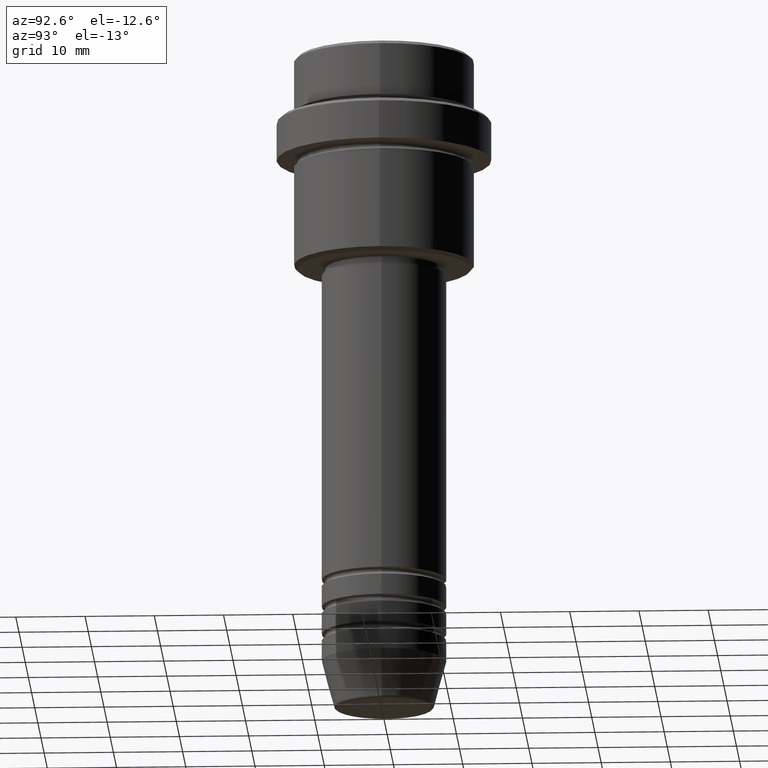
[diagram: clean part render]
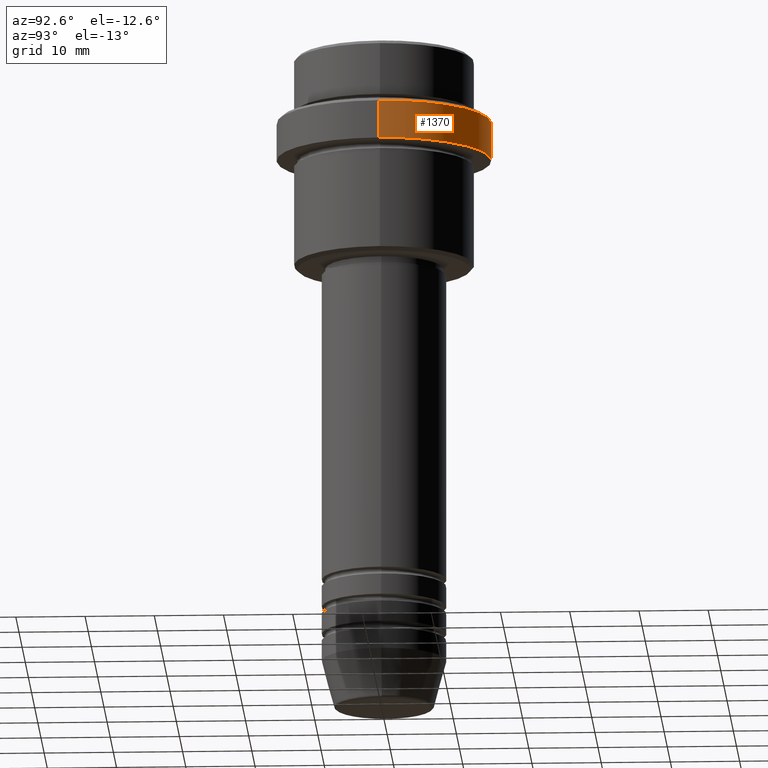
[diagram: same view with one face highlighted and labeled with its STEP entity id]
A machine part, auxiliary view. The second image highlights one B-rep face of the part: STEP entity #1370.
In plain terms, the highlighted cylindrical surface (partial cylindrical patch) has radius 15.5 mm, axis along (-0, -0, 1).
Its self-contained STEP definition (entity closure, byte-faithful):
#36 = EDGE_CURVE ( 'NONE', #623, #1030, #380, .T. ) ;
#46 = VERTEX_POINT ( 'NONE', #67 ) ;
#57 = EDGE_CURVE ( 'NONE', #1030, #46, #1059, .T. ) ;
#58 = CIRCLE ( 'NONE', #299, 15.50000000000000000 ) ;
#67 = CARTESIAN_POINT ( 'NONE',  ( 15.50000000000000000, 0.000000000000000000, -9.499999999999998224 ) ) ;
#92 = DIRECTION ( 'NONE',  ( -0.000000000000000000, -0.000000000000000000, 1.000000000000000000 ) ) ;
#217 = CARTESIAN_POINT ( 'NONE',  ( 0.000000000000000000, 0.000000000000000000, -15.00000000000000000 ) ) ;
#224 = DIRECTION ( 'NONE',  ( -0.000000000000000000, -0.000000000000000000, 1.000000000000000000 ) ) ;
#232 = CARTESIAN_POINT ( 'NONE',  ( -15.50000000000000000, 1.898202538678397557E-15, -15.00000000000000000 ) ) ;
#266 = CARTESIAN_POINT ( 'NONE',  ( 0.000000000000000000, 0.000000000000000000, -9.499999999999998224 ) ) ;
#271 = EDGE_LOOP ( 'NONE', ( #418, #845, #1252, #341 ) ) ;
#299 = AXIS2_PLACEMENT_3D ( 'NONE', #217, #968, #871 ) ;
#341 = ORIENTED_EDGE ( 'NONE', *, *, #870, .F. ) ;
#377 = VECTOR ( 'NONE', #92, 1000.000000000000000 ) ;
#380 = LINE ( 'NONE', #1170, #377 ) ;
#414 = DIRECTION ( 'NONE',  ( 1.000000000000000000, 0.000000000000000000, 0.000000000000000000 ) ) ;
#418 = ORIENTED_EDGE ( 'NONE', *, *, #1327, .T. ) ;
#488 = CARTESIAN_POINT ( 'NONE',  ( 15.50000000000000000, 0.000000000000000000, -15.00000000000000000 ) ) ;
#504 = VECTOR ( 'NONE', #1197, 1000.000000000000000 ) ;
#623 = VERTEX_POINT ( 'NONE', #232 ) ;
#631 = FACE_OUTER_BOUND ( 'NONE', #271, .T. ) ;
#633 = AXIS2_PLACEMENT_3D ( 'NONE', #266, #812, #952 ) ;
#650 = CARTESIAN_POINT ( 'NONE',  ( 0.000000000000000000, 0.000000000000000000, 0.000000000000000000 ) ) ;
#658 = LINE ( 'NONE', #1002, #504 ) ;
#812 = DIRECTION ( 'NONE',  ( 0.000000000000000000, 0.000000000000000000, -1.000000000000000000 ) ) ;
#845 = ORIENTED_EDGE ( 'NONE', *, *, #36, .T. ) ;
#870 = EDGE_CURVE ( 'NONE', #1193, #46, #658, .T. ) ;
#871 = DIRECTION ( 'NONE',  ( 1.000000000000000000, 0.000000000000000000, 0.000000000000000000 ) ) ;
#952 = DIRECTION ( 'NONE',  ( 1.000000000000000000, 0.000000000000000000, 0.000000000000000000 ) ) ;
#968 = DIRECTION ( 'NONE',  ( -0.000000000000000000, -0.000000000000000000, 1.000000000000000000 ) ) ;
#1002 = CARTESIAN_POINT ( 'NONE',  ( 15.50000000000000000, 0.000000000000000000, 0.000000000000000000 ) ) ;
#1030 = VERTEX_POINT ( 'NONE', #1335 ) ;
#1059 = CIRCLE ( 'NONE', #633, 15.50000000000000000 ) ;
#1085 = CYLINDRICAL_SURFACE ( 'NONE', #1341, 15.50000000000000000 ) ;
#1170 = CARTESIAN_POINT ( 'NONE',  ( -15.50000000000000000, 1.898202538678397557E-15, 0.000000000000000000 ) ) ;
#1193 = VERTEX_POINT ( 'NONE', #488 ) ;
#1197 = DIRECTION ( 'NONE',  ( -0.000000000000000000, -0.000000000000000000, 1.000000000000000000 ) ) ;
#1252 = ORIENTED_EDGE ( 'NONE', *, *, #57, .T. ) ;
#1327 = EDGE_CURVE ( 'NONE', #1193, #623, #58, .T. ) ;
#1335 = CARTESIAN_POINT ( 'NONE',  ( -15.50000000000000000, 1.898202538678397557E-15, -9.499999999999998224 ) ) ;
#1341 = AXIS2_PLACEMENT_3D ( 'NONE', #650, #224, #414 ) ;
#1370 = ADVANCED_FACE ( 'NONE', ( #631 ), #1085, .T. ) ;